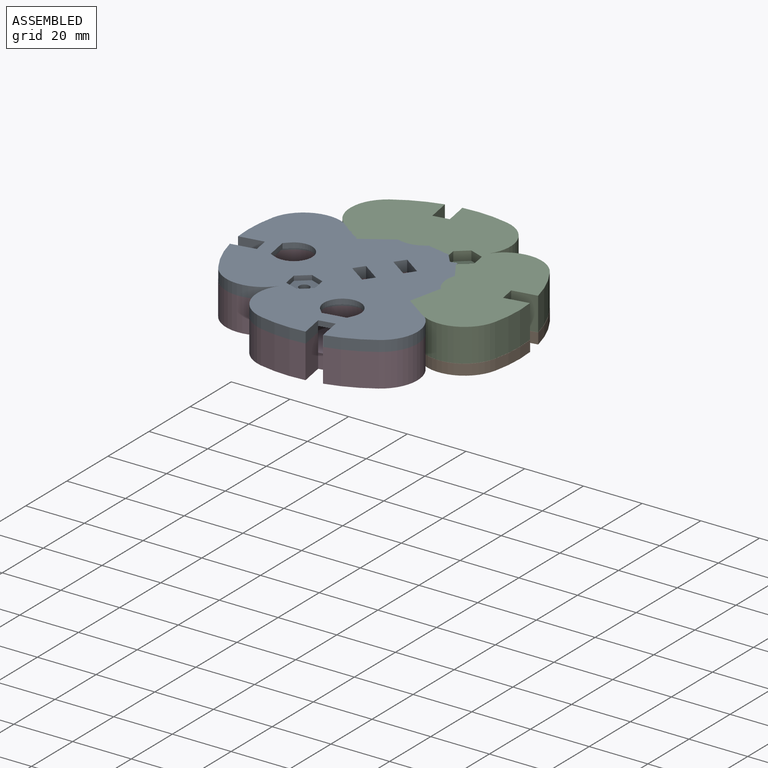
[diagram: assembled view]
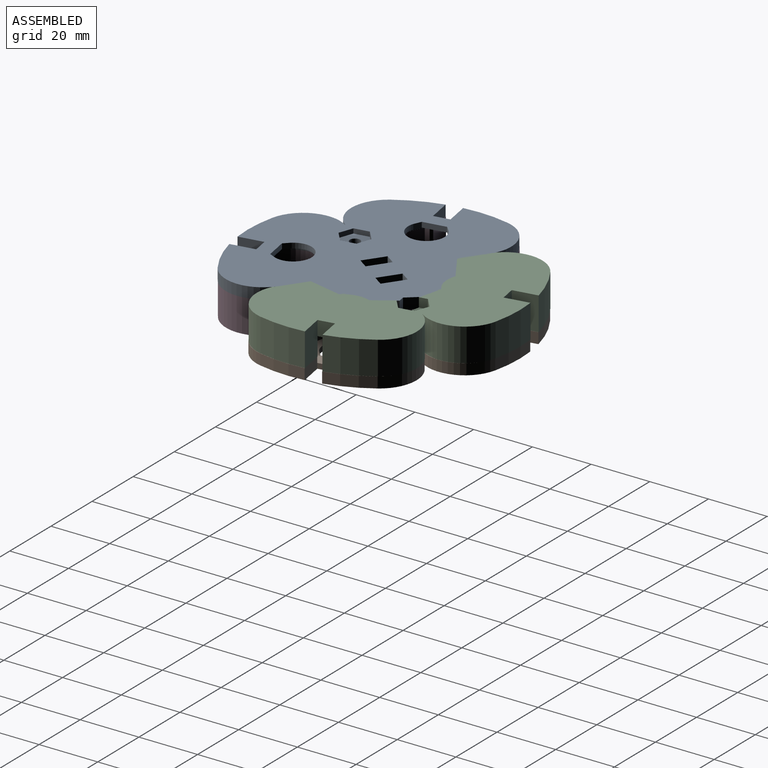
[diagram: assembled view, second angle]
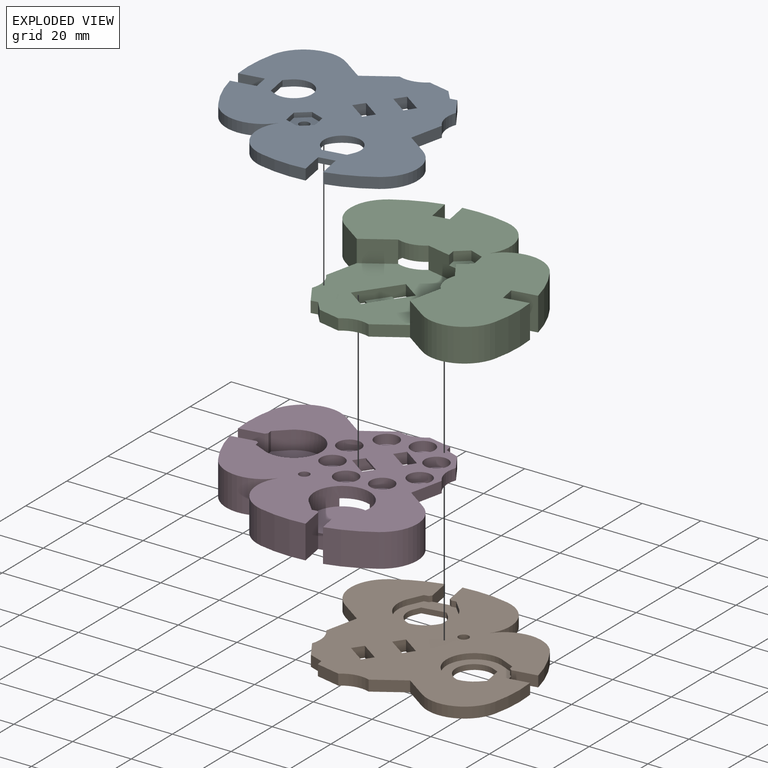
[diagram: exploded view]
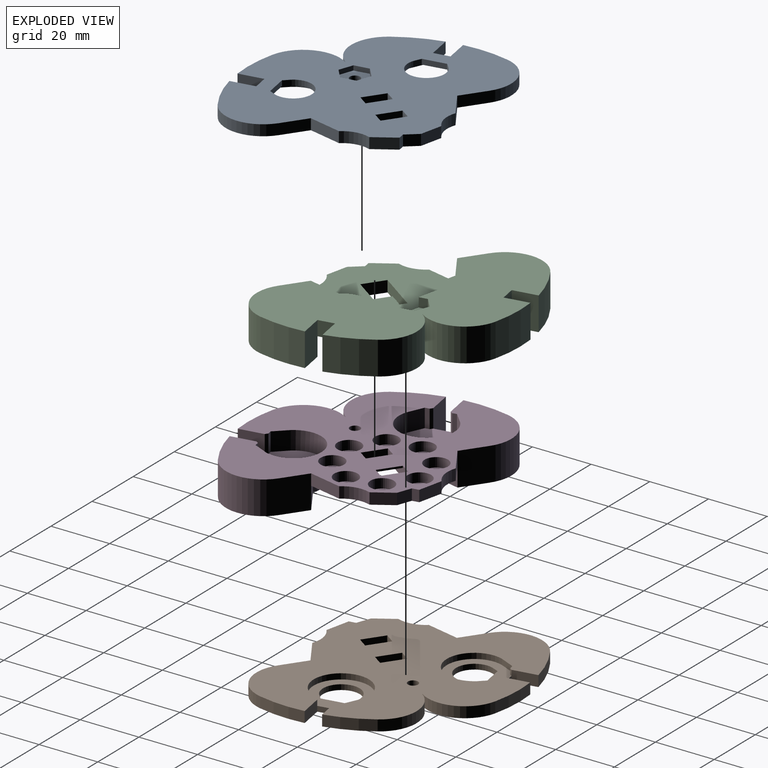
[diagram: exploded view, second angle]
ASSEMBLY  parts=4 mates=3
PART A: 66 faces, bbox 72.3x72.3x3.7 mm
  f0: plane 72.25x72.25mm, normal (0,0,1), area 3318.8mm2, adj f4,f5,f6,f7,f8,f9,f10,f11
  f1: plane 19.54x18.8mm, normal (0,0,-1), area 171.1mm2, adj f16,f34,f35,f36,f37,f38,f39,f40
  f2: plane 19.54x18.8mm, normal (0,0,-1), area 171.1mm2, adj f7,f41,f42,f43,f44,f45,f46,f47
  f3: plane 72.25x72.25mm, normal (0,0,-1), area 3034.2mm2, adj f4,f5,f6,f8,f9,f10,f11,f12
  f4: plane 7.81x3.68mm, normal (-0.92,-0.38,0), area 31.1mm2, adj f0,f3,f31,f56
  f5: plane 7.08x3.68mm, normal (-0.38,-0.92,0), area 28.2mm2, adj f0,f3,f28,f57
  f6: plane 8.3x3.68mm, normal (-1,0,0), area 30.6mm2, adj f0,f3,f7,f21,f45
  f7: plane 5.38x1.78mm, normal (0,1,0), area 9.6mm2, adj f0,f2,f6,f8
  f8: plane 8.3x3.68mm, normal (1,0,0), area 30.6mm2, adj f0,f3,f7,f9,f46
  f9: cylinder r=46.48mm len=15.4mm, axis (0,0,-1), area 58.5mm2, adj f0,f3,f8,f10
  f10: cylinder r=12.7mm len=20.68mm, axis (0,0,-1), area 91.5mm2, adj f0,f3,f9,f11
  f11: plane 6.76x6.76mm, normal (-0.71,-0.71,0), area 35.2mm2, adj f0,f3,f10,f30
  f12: plane 6.76x6.76mm, normal (-0.71,-0.71,0), area 35.2mm2, adj f0,f3,f13,f29
  f13: cylinder r=12.7mm len=20.68mm, axis (0,0,-1), area 91.5mm2, adj f0,f3,f12,f14
  f14: cylinder r=46.48mm len=15.4mm, axis (0,0,-1), area 58.5mm2, adj f0,f3,f13,f15
  f15: plane 8.3x3.68mm, normal (0,1,0), area 30.6mm2, adj f0,f3,f14,f16,f38
  f16: plane 5.38x1.78mm, normal (1,0,0), area 9.6mm2, adj f0,f1,f15,f17
  f17: plane 8.3x3.68mm, normal (0,-1,0), area 30.6mm2, adj f0,f3,f16,f18,f39
  f18: cylinder r=46.48mm len=15.4mm, axis (0,0,-1), area 58.5mm2, adj f0,f3,f17,f19
  f19: cylinder r=12.7mm len=20.68mm, axis (0,0,-1), area 91.5mm2, adj f0,f3,f18,f20
  f20: cylinder r=12.7mm len=20.68mm, axis (0,0,-1), area 91.5mm2, adj f0,f3,f19,f21
  f21: cylinder r=46.48mm len=15.4mm, axis (0,0,-1), area 58.5mm2, adj f0,f3,f6,f20
  f22: plane 5.72x5.72mm, normal (-0.71,-0.71,0), area 29.8mm2, adj f0,f3,f23,f33
  f23: plane 3.68x2.92mm, normal (-0.71,0.71,0), area 15.2mm2, adj f0,f3,f22,f24
  f24: plane 5.72x5.72mm, normal (0.71,0.71,0), area 29.8mm2, adj f0,f3,f23,f33
  f25: plane 5.72x5.72mm, normal (0.71,0.71,0), area 29.8mm2, adj f0,f3,f26,f32
  f26: plane 3.68x2.92mm, normal (0.71,-0.71,0), area 15.2mm2, adj f0,f3,f25,f27
  f27: plane 5.72x5.72mm, normal (-0.71,-0.71,0), area 29.8mm2, adj f0,f3,f26,f32
  f28: cylinder r=9.4mm len=9.35mm, axis (0,0,-1), area 36.1mm2, adj f0,f3,f5,f29
  f29: plane 10.7x4.43mm, normal (0.38,-0.92,0), area 42.6mm2, adj f0,f3,f12,f28
  f30: plane 10.7x4.43mm, normal (-0.92,0.38,0), area 42.6mm2, adj f0,f3,f11,f31
  f31: cylinder r=9.4mm len=9.35mm, axis (0,0,-1), area 36.1mm2, adj f0,f3,f4,f30
  f32: plane 3.68x2.92mm, normal (-0.71,0.71,0), area 15.2mm2, adj f0,f3,f25,f27
  f33: plane 3.68x2.92mm, normal (0.71,-0.71,0), area 15.2mm2, adj f0,f3,f22,f24
  f34: plane 4.71x3.18mm, normal (-0.56,-0.83,0), area 10.8mm2, adj f1,f3,f35,f40
  f35: cylinder r=9.4mm len=18.8mm, axis (0,0,-1), area 74.9mm2, adj f1,f3,f34,f36
  f36: plane 4.71x3.18mm, normal (-0.56,0.83,0), area 10.8mm2, adj f1,f3,f35,f37
  f37: plane 1.91x1.52mm, normal (-1,0,0), area 2.9mm2, adj f1,f3,f36,f38
  f38: plane 1.91x0.76mm, normal (-0.71,0.71,0), area 2.1mm2, adj f1,f3,f15,f37
  f39: plane 1.91x0.76mm, normal (-0.71,-0.71,0), area 2.1mm2, adj f1,f3,f17,f40
  f40: plane 1.91x1.52mm, normal (-1,0,0), area 2.9mm2, adj f1,f3,f34,f39
  f41: plane 4.71x3.18mm, normal (0.83,-0.56,0), area 10.8mm2, adj f2,f3,f42,f47
  f42: cylinder r=9.4mm len=18.8mm, axis (0,0,-1), area 74.9mm2, adj f2,f3,f41,f43
  f43: plane 4.71x3.18mm, normal (-0.83,-0.56,0), area 10.8mm2, adj f2,f3,f42,f44
  f44: plane 1.91x1.52mm, normal (0,-1,0), area 2.9mm2, adj f2,f3,f43,f45
  f45: plane 1.91x0.76mm, normal (-0.71,-0.71,0), area 2.1mm2, adj f2,f3,f6,f44
  f46: plane 1.91x0.76mm, normal (0.71,-0.71,0), area 2.1mm2, adj f2,f3,f8,f47
  f47: plane 1.91x1.52mm, normal (0,-1,0), area 2.9mm2, adj f2,f3,f41,f46
  f48: plane 5.08x1.59mm, normal (-1,0,0), area 8.1mm2, adj f0,f49,f53,f54
  f49: plane 4.4x2.54mm, normal (-0.5,-0.87,0), area 8.1mm2, adj f0,f48,f50,f54
  f50: plane 4.4x2.54mm, normal (0.5,-0.87,0), area 8.1mm2, adj f0,f49,f51,f54
  f51: plane 5.08x1.59mm, normal (1,0,0), area 8.1mm2, adj f0,f50,f52,f54
  f52: plane 4.4x2.54mm, normal (0.5,0.87,0), area 8.1mm2, adj f0,f51,f53,f54
  f53: plane 4.4x2.54mm, normal (-0.5,0.87,0), area 8.1mm2, adj f0,f48,f52,f54
  f54: plane 10.16x8.8mm, normal (0,0,1), area 57.6mm2, adj f48,f49,f50,f51,f52,f53,f55
  f55: cylinder r=1.74mm len=3.47mm, axis (0,0,1), area 22.9mm2, adj f3,f54
  f56: plane 3.68x2.28mm, normal (0,-1,0), area 8.4mm2, adj f0,f3,f4,f57
  f57: plane 4.38x3.68mm, normal (-0.87,-0.5,0), area 18.6mm2, adj f0,f3,f5,f56
  f58: plane 2.3x1.78mm, normal (0.83,-0.56,0), area 4.9mm2, adj f0,f2,f59,f61
  f59: cylinder r=6.22mm len=12.45mm, axis (0,0,1), area 45.9mm2, adj f0,f2,f58,f60
  f60: plane 2.3x1.78mm, normal (-0.83,-0.56,0), area 4.9mm2, adj f0,f2,f59,f61
  f61: plane 7.8x1.78mm, normal (0,-1,0), area 13.9mm2, adj f0,f2,f58,f60
  f62: plane 2.3x1.78mm, normal (-0.56,-0.83,0), area 4.9mm2, adj f0,f1,f63,f65
  f63: cylinder r=6.22mm len=12.45mm, axis (0,0,1), area 45.9mm2, adj f0,f1,f62,f64
  f64: plane 2.3x1.78mm, normal (-0.56,0.83,0), area 4.9mm2, adj f0,f1,f63,f65
  f65: plane 7.8x1.78mm, normal (-1,0,0), area 13.9mm2, adj f0,f1,f62,f64
PART B: same geometry as A
PART C: 80 faces, bbox 72.3x72.3x11.3 mm
  f0: plane 39.61x39.61mm, normal (0,0,1), area 1127.6mm2, adj f2,f3,f4,f13,f15,f17,f29,f30
  f1: plane 72.25x72.25mm, normal (0,0,-1), area 2638.4mm2, adj f2,f3,f5,f6,f7,f9,f10,f11
  f2: plane 7.81x3.81mm, normal (-0.92,-0.38,0), area 32.2mm2, adj f0,f1,f36,f79
  f3: plane 7.08x3.81mm, normal (-0.38,-0.92,0), area 29.2mm2, adj f0,f1,f33,f78
  f4: plane 10.7x7.49mm, normal (-0.38,-0.92,0), area 76.8mm2, adj f0,f14,f15,f28,f45,f71,f76
  f5: plane 5.72x5.72mm, normal (0.71,0.71,0), area 5.1mm2, adj f1,f30,f32,f69
  f6: plane 5.72x5.72mm, normal (-0.71,-0.71,0), area 5.1mm2, adj f1,f30,f32,f69
  f7: plane 11.3x8.3mm, normal (-1,0,0), area 93.9mm2, adj f1,f8,f27,f28,f49
  f8: plane 5.38x5mm, normal (0,1,0), area 26.9mm2, adj f7,f9,f28,f52
  f9: plane 11.3x8.3mm, normal (1,0,0), area 93.9mm2, adj f1,f8,f10,f28,f50
  f10: cylinder r=46.48mm len=15.4mm, axis (0,0,-1), area 179.6mm2, adj f1,f9,f11,f28
  f11: cylinder r=12.7mm len=20.68mm, axis (0,0,-1), area 280.8mm2, adj f1,f10,f12,f28
  f12: plane 11.3x6.76mm, normal (-0.71,-0.71,0), area 108mm2, adj f1,f11,f13,f28,f35
  f13: plane 10.7x7.49mm, normal (0.38,-0.92,0), area 86.7mm2, adj f0,f12,f14,f28,f45
  f14: cylinder r=9.4mm len=9.35mm, axis (0,0,-1), area 49mm2, adj f4,f13,f28,f52
  f15: plane 10.7x7.49mm, normal (-0.92,-0.38,0), area 74.3mm2, adj f0,f4,f16,f28,f37,f72,f76
  f16: cylinder r=9.4mm len=9.35mm, axis (0,0,-1), area 49mm2, adj f15,f17,f28,f44
  f17: plane 10.7x7.49mm, normal (-0.92,0.38,0), area 86.7mm2, adj f0,f16,f18,f28,f37
  f18: plane 11.3x6.76mm, normal (-0.71,-0.71,0), area 108mm2, adj f1,f17,f19,f28,f34
  f19: cylinder r=12.7mm len=20.68mm, axis (0,0,-1), area 280.8mm2, adj f1,f18,f20,f28
  f20: cylinder r=46.48mm len=15.4mm, axis (0,0,-1), area 179.6mm2, adj f1,f19,f21,f28
  f21: plane 11.3x8.3mm, normal (0,1,0), area 93.9mm2, adj f1,f20,f22,f28,f41
  f22: plane 5.38x5mm, normal (1,0,0), area 26.9mm2, adj f21,f23,f28,f44
  f23: plane 11.3x8.3mm, normal (0,-1,0), area 93.9mm2, adj f1,f22,f24,f28,f42
  f24: cylinder r=46.48mm len=15.4mm, axis (0,0,-1), area 179.6mm2, adj f1,f23,f25,f28
  f25: cylinder r=12.7mm len=20.68mm, axis (0,0,-1), area 280.8mm2, adj f1,f24,f26,f28
  f26: cylinder r=12.7mm len=20.68mm, axis (0,0,-1), area 280.8mm2, adj f1,f25,f27,f28
  f27: cylinder r=46.48mm len=15.4mm, axis (0,0,-1), area 179.6mm2, adj f1,f7,f26,f28
  f28: plane 72.25x72.25mm, normal (0,0,1), area 2371.6mm2, adj f4,f7,f8,f9,f10,f11,f12,f13
  f29: plane 5.72x5.72mm, normal (-0.71,-0.71,0), area 30.8mm2, adj f0,f1,f30,f32
  f30: plane 11.55x11.55mm, normal (-0.71,0.71,0), area 57.1mm2, adj f0,f1,f5,f6,f29,f31,f69
  f31: plane 5.72x5.72mm, normal (0.71,0.71,0), area 30.8mm2, adj f0,f1,f30,f32
  f32: plane 11.55x11.55mm, normal (0.71,-0.71,0), area 57.1mm2, adj f0,f1,f5,f6,f29,f31,f69
  f33: cylinder r=9.4mm len=9.35mm, axis (0,0,-1), area 37.3mm2, adj f0,f1,f3,f34
  f34: plane 10.7x4.43mm, normal (0.38,-0.92,0), area 44.1mm2, adj f0,f1,f18,f33
  f35: plane 10.7x4.43mm, normal (-0.92,0.38,0), area 44.1mm2, adj f0,f1,f12,f36
  f36: cylinder r=9.4mm len=9.35mm, axis (0,0,-1), area 37.3mm2, adj f0,f1,f2,f35
  f37: cylinder r=9.4mm len=18.8mm, axis (0,0,-1), area 223.2mm2, adj f0,f1,f15,f17,f38,f39,f44
  f38: plane 6.3x4.71mm, normal (-0.56,-0.83,0), area 35.8mm2, adj f1,f37,f43,f44
  f39: plane 6.3x4.71mm, normal (-0.56,0.83,0), area 35.8mm2, adj f1,f37,f40,f44
  f40: plane 6.3x1.52mm, normal (-1,0,0), area 9.6mm2, adj f1,f39,f41,f44
  f41: plane 6.3x0.76mm, normal (-0.71,0.71,0), area 6.8mm2, adj f1,f21,f40,f44
  f42: plane 6.3x0.76mm, normal (-0.71,-0.71,0), area 6.8mm2, adj f1,f23,f43,f44
  f43: plane 6.3x1.52mm, normal (-1,0,0), area 9.6mm2, adj f1,f38,f42,f44
  f44: plane 19.54x18.8mm, normal (0,0,-1), area 289.3mm2, adj f16,f22,f37,f38,f39,f40,f41,f42
  f45: cylinder r=9.4mm len=18.8mm, axis (0,0,-1), area 223.2mm2, adj f0,f1,f4,f13,f46,f47,f52
  f46: plane 6.3x4.71mm, normal (0.83,-0.56,0), area 35.8mm2, adj f1,f45,f51,f52
  f47: plane 6.3x4.71mm, normal (-0.83,-0.56,0), area 35.8mm2, adj f1,f45,f48,f52
  f48: plane 6.3x1.52mm, normal (0,-1,0), area 9.6mm2, adj f1,f47,f49,f52
  f49: plane 6.3x0.76mm, normal (-0.71,-0.71,0), area 6.8mm2, adj f1,f7,f48,f52
  f50: plane 6.3x0.76mm, normal (0.71,-0.71,0), area 6.8mm2, adj f1,f9,f51,f52
  f51: plane 6.3x1.52mm, normal (0,-1,0), area 9.6mm2, adj f1,f46,f50,f52
  f52: plane 19.54x18.8mm, normal (0,0,-1), area 289.3mm2, adj f8,f14,f45,f46,f47,f48,f49,f50
  f53: cylinder r=3.97mm len=7.94mm, axis (0,0,-1), area 79.8mm2, adj f1,f54
  f54: plane 7.94x7.94mm, normal (0,0,-1), area 49.5mm2, adj f53
  f55: cylinder r=3.97mm len=7.94mm, axis (0,0,-1), area 79.8mm2, adj f1,f56
  f56: plane 7.94x7.94mm, normal (0,0,-1), area 49.5mm2, adj f55
  f57: cylinder r=3.97mm len=7.94mm, axis (0,0,-1), area 79.8mm2, adj f1,f58
  f58: plane 7.94x7.94mm, normal (0,0,-1), area 49.5mm2, adj f57
  f59: cylinder r=3.97mm len=7.94mm, axis (0,0,-1), area 79.8mm2, adj f1,f60
  f60: plane 7.94x7.94mm, normal (0,0,-1), area 49.5mm2, adj f59
  f61: cylinder r=3.97mm len=7.94mm, axis (0,0,-1), area 79.8mm2, adj f1,f62
  f62: plane 7.94x7.94mm, normal (0,0,-1), area 49.5mm2, adj f61
  f63: cylinder r=3.97mm len=7.94mm, axis (0,0,-1), area 79.8mm2, adj f1,f64
  f64: plane 7.94x7.94mm, normal (0,0,-1), area 49.5mm2, adj f63
  f65: cylinder r=3.97mm len=7.94mm, axis (0,0,-1), area 79.8mm2, adj f1,f66
  f66: plane 7.94x7.94mm, normal (0,0,-1), area 49.5mm2, adj f65
  f67: cylinder r=3.97mm len=7.94mm, axis (0,0,-1), area 79.8mm2, adj f1,f68
  f68: plane 7.94x7.94mm, normal (0,0,-1), area 49.5mm2, adj f67
  f69: plane 11.43x11.43mm, normal (0,0,1), area 65.3mm2, adj f5,f6,f30,f32
  f70: plane 4.4x3.18mm, normal (0.5,-0.87,0), area 16.1mm2, adj f28,f71,f75,f76
  f71: plane 3.18x2.8mm, normal (1,0,0), area 8.9mm2, adj f4,f28,f70,f76
  f72: plane 3.18x0.02mm, normal (0.5,0.87,0), area 0.1mm2, adj f15,f28,f73,f76
  f73: plane 4.4x3.18mm, normal (-0.5,0.87,0), area 16.1mm2, adj f28,f72,f74,f76
  f74: plane 5.08x3.18mm, normal (-1,0,0), area 16.1mm2, adj f28,f73,f75,f76
  f75: plane 4.4x3.18mm, normal (-0.5,-0.87,0), area 16.1mm2, adj f28,f70,f74,f76
  f76: plane 10.16x8.8mm, normal (0,0,1), area 48.3mm2, adj f4,f15,f70,f71,f72,f73,f74,f75
  f77: cylinder r=1.74mm len=8.13mm, axis (0,0,1), area 88.7mm2, adj f1,f76
  f78: plane 4.38x3.81mm, normal (-0.87,-0.5,0), area 19.3mm2, adj f0,f1,f3,f79
  f79: plane 3.81x2.28mm, normal (0,-1,0), area 8.7mm2, adj f0,f1,f2,f78
PART D: same geometry as C
PLACE A rot(axis=(0,0,-1),170deg) t=(43.37,69.9,44.05)mm
PLACE B rot(axis=(0.64,0.77,0),180deg) t=(43.18,69.62,36.43)mm
PLACE C rot(axis=(0,0,1),10deg) t=(43.12,69.67,36.43)mm
PLACE D rot(axis=(0.77,-0.64,0),180deg) t=(43.31,69.94,44.05)mm
MATE slider D.f0 <-> C.f0  axis (0,0,-1) through (43.21,69.81,40.24)mm
MATE fastened C.f77 <-> B.f55  axis (0,0,-1) through (56.82,89.17,36.43)mm
MATE fastened D.f77 <-> A.f55  axis (0,0,1) through (29.67,50.39,44.05)mm
